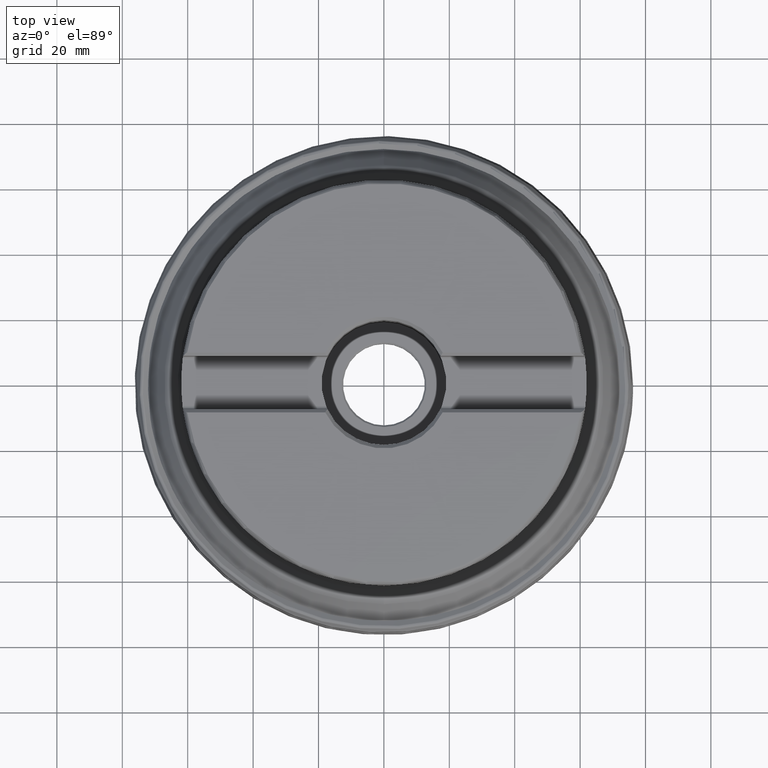
[diagram: clean part render]
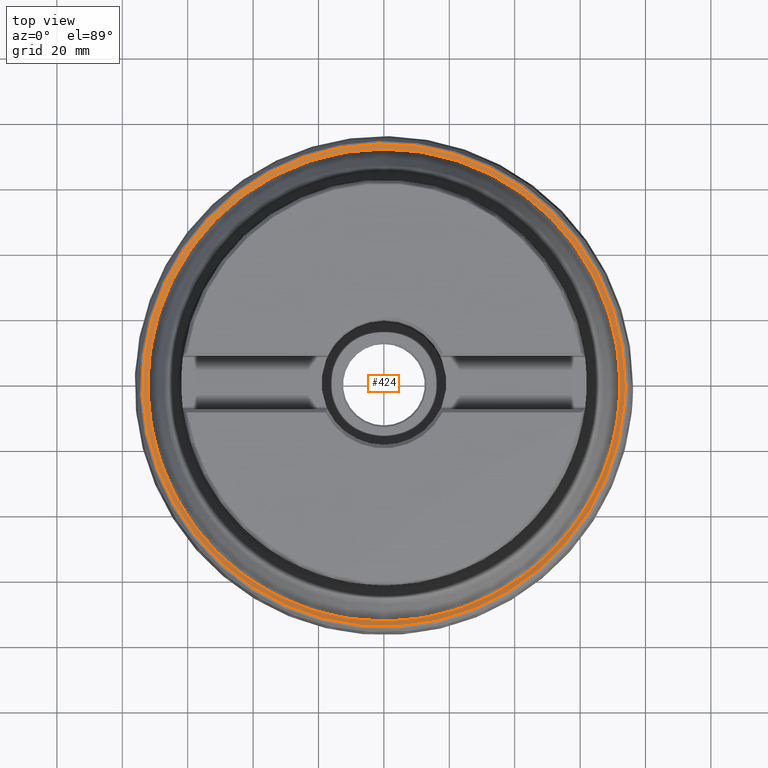
[diagram: same view with one face highlighted and labeled with its STEP entity id]
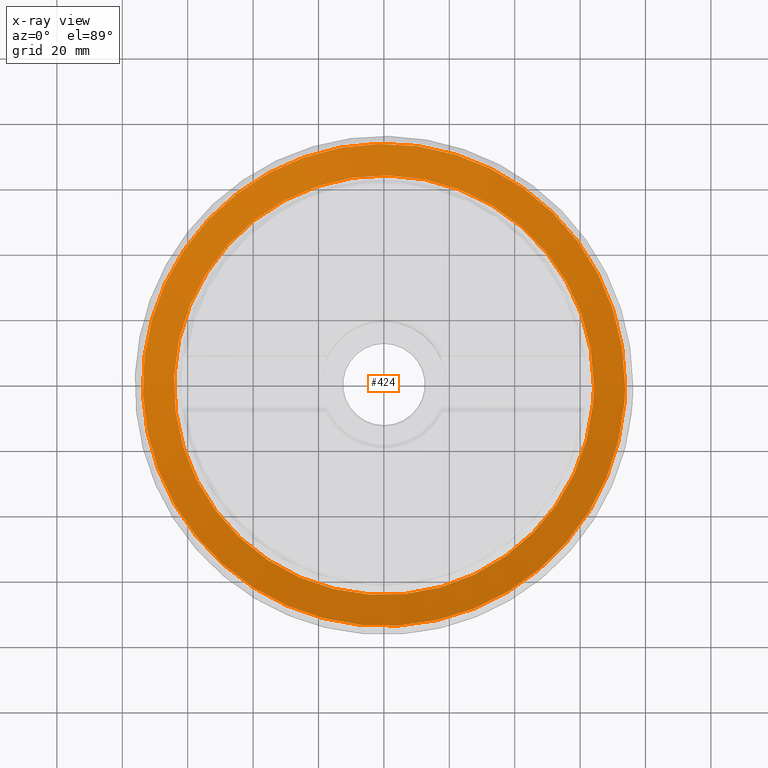
[diagram: x-ray of the same camera — body ghosted, the highlighted face saturated]
A machine part, top view. The second image highlights one B-rep face of the part: STEP entity #424.
The next image is the same camera in x-ray: the body ghosted, the highlighted face saturated — about 0% of this face is hidden behind the body in this view.
In plain terms, the highlighted face is a SurfaceOfRevolution surface.
Its self-contained STEP definition (entity closure, byte-faithful):
#124=SURFACE_OF_REVOLUTION('',#1177,#145);
#145=AXIS1_PLACEMENT('',#2455,#1568);
#339=FACE_BOUND('',#583,.T.);
#340=FACE_BOUND('',#584,.T.);
#424=ADVANCED_FACE('',(#339,#340),#124,.F.);
#583=EDGE_LOOP('',(#821));
#584=EDGE_LOOP('',(#822));
#821=ORIENTED_EDGE('',*,*,#1046,.T.);
#822=ORIENTED_EDGE('',*,*,#1047,.F.);
#927=VERTEX_POINT('',#2426);
#928=VERTEX_POINT('',#2440);
#1046=EDGE_CURVE('',#927,#927,#1110,.T.);
#1047=EDGE_CURVE('',#928,#928,#1111,.T.);
#1110=CIRCLE('',#1296,73.7410896412256);
#1111=CIRCLE('',#1297,64.1891913350912);
#1177=B_SPLINE_CURVE_WITH_KNOTS('',3,(#2441,#2442,#2443,#2444,#2445,#2446,
#2447,#2448,#2449,#2450,#2451,#2452,#2453,#2454),.UNSPECIFIED.,.F.,.F.,
(4,1,1,1,1,1,1,1,1,1,1,4),(0.,0.228057409693129,0.368730032744676,0.509402655796224,
0.650075278847772,0.720411590373546,0.755579746136432,0.790747901899319,
0.861084213425093,0.931420524950867,0.966588680713754,1.),.UNSPECIFIED.);
#1296=AXIS2_PLACEMENT_3D('',#2425,#1563,#1564);
#1297=AXIS2_PLACEMENT_3D('',#2439,#1566,#1567);
#1563=DIRECTION('',(0.,0.,1.));
#1564=DIRECTION('',(1.,0.,0.));
#1566=DIRECTION('',(0.,0.,1.));
#1567=DIRECTION('',(1.,0.,0.));
#1568=DIRECTION('',(0.,0.,1.));
#2425=CARTESIAN_POINT('',(0.,0.,16.0855407563418));
#2426=CARTESIAN_POINT('',(73.7410896412256,0.,16.0855407563418));
#2439=CARTESIAN_POINT('',(0.,0.,10.7766382712955));
#2440=CARTESIAN_POINT('',(64.1891913350912,0.,10.7766382712955));
#2441=CARTESIAN_POINT('',(63.9202796275027,-5.8694186564741,10.7766375357149));
#2442=CARTESIAN_POINT('',(64.6371159189435,-5.86781890914694,11.2044833130455));
#2443=CARTESIAN_POINT('',(65.8015676653433,-5.86686344896301,11.8871146605899));
#2444=CARTESIAN_POINT('',(67.4219303171855,-5.86922875207353,12.8098881875621));
#2445=CARTESIAN_POINT('',(68.7708804008776,-5.87318666533556,13.5627511635747));
#2446=CARTESIAN_POINT('',(69.8997914399792,-5.87786356303624,14.1814703548764));
#2447=CARTESIAN_POINT('',(70.6923120614179,-5.88229779513219,14.6103397659397));
#2448=CARTESIAN_POINT('',(71.1459100963472,-5.88432671021621,14.8541005396687));
#2449=CARTESIAN_POINT('',(71.6005267829436,-5.87487594040974,15.0958063035739));
#2450=CARTESIAN_POINT('',(72.1700742448389,-5.84556463209464,15.3945463280762));
#2451=CARTESIAN_POINT('',(72.7402708571647,-5.79151480095352,15.6884942092356));
#2452=CARTESIAN_POINT('',(73.1904639344705,-5.73332804393123,15.9177024858354));
#2453=CARTESIAN_POINT('',(73.4128291253058,-5.70456122398546,16.0305981042897));
#2454=CARTESIAN_POINT('',(73.5211939145687,-5.69054890600589,16.0855407563418));
#2455=CARTESIAN_POINT('',(0.,0.,0.));